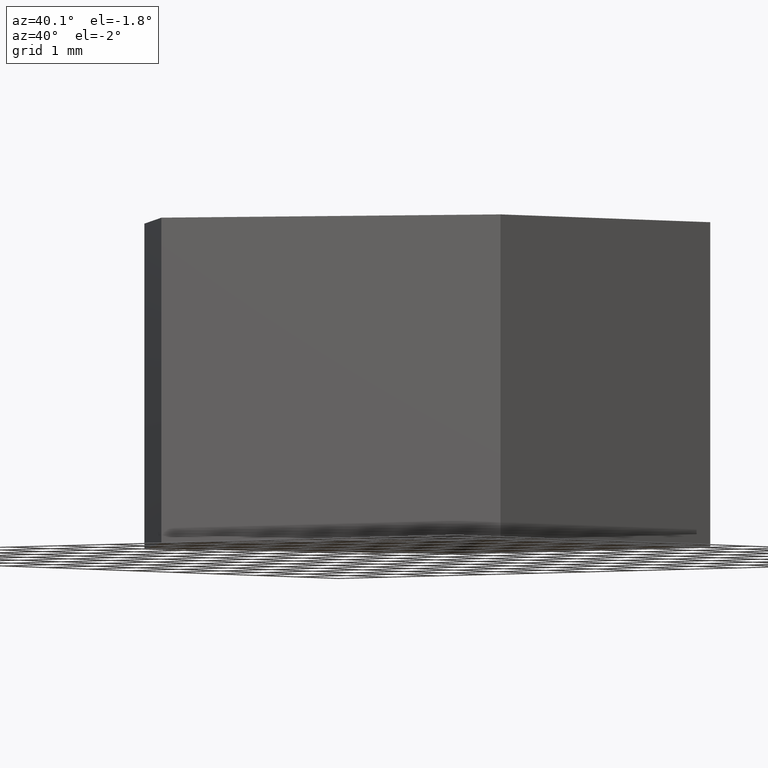
[diagram: clean part render]
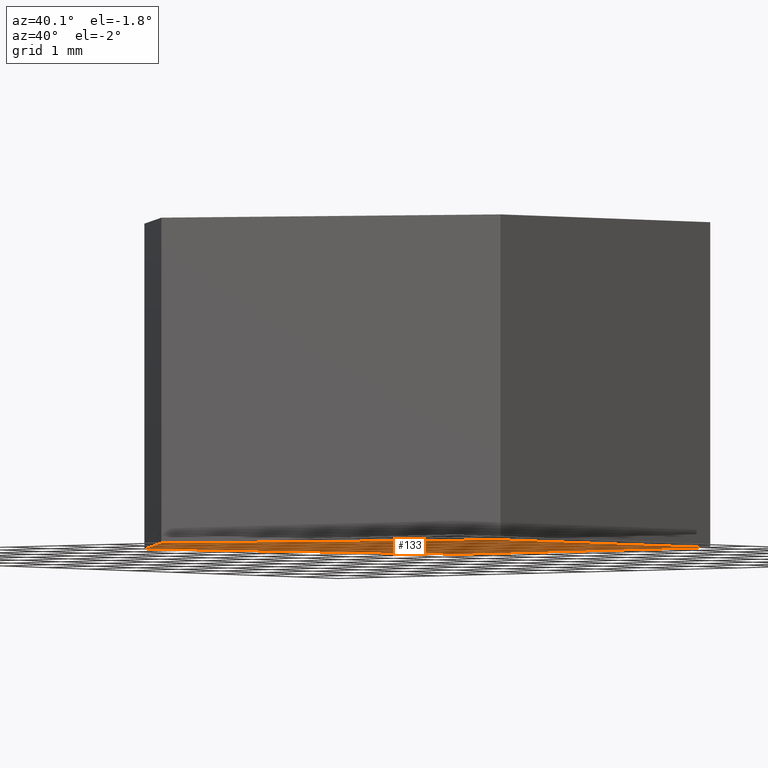
[diagram: same view with one face highlighted and labeled with its STEP entity id]
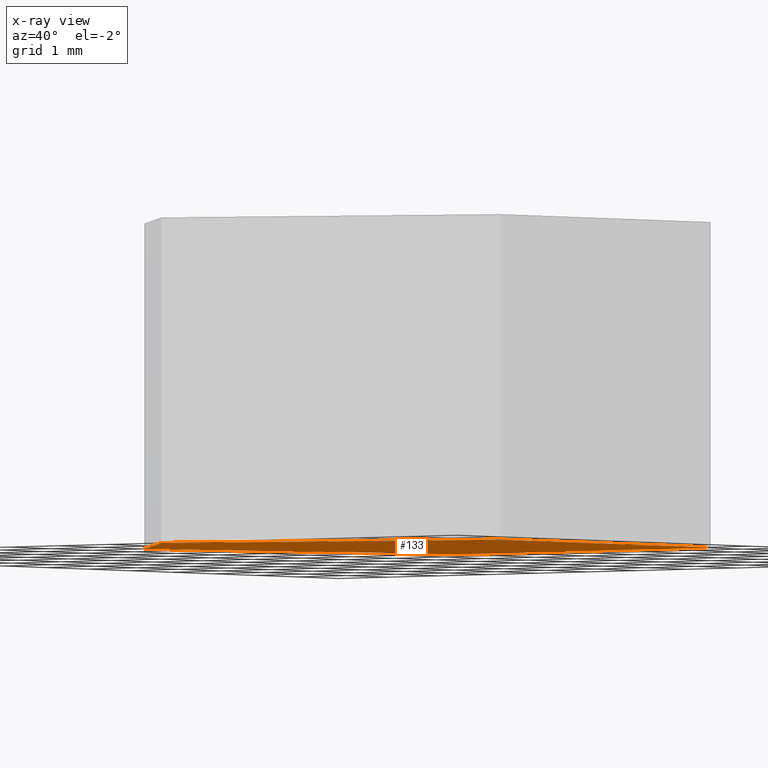
[diagram: x-ray of the same camera — body ghosted, the highlighted face saturated]
A machine part, auxiliary view. The second image highlights one B-rep face of the part: STEP entity #133.
The next image is the same camera in x-ray: the body ghosted, the highlighted face saturated — about 0% of this face is hidden behind the body in this view.
In plain terms, the highlighted planar face has unit normal (0, -0, 1).
Its self-contained STEP definition (entity closure, byte-faithful):
#9 = EDGE_CURVE ( 'NONE', #216, #322, #197, .T. ) ;
#16 = CARTESIAN_POINT ( 'NONE',  ( 11.62476252515132200, 16.24712349419276000, 0.0000000000000000000 ) ) ;
#21 = CARTESIAN_POINT ( 'NONE',  ( 16.62476252515132200, 16.24712349419276000, 0.0000000000000000000 ) ) ;
#41 = VECTOR ( 'NONE', #78, 999.9999999999998900 ) ;
#65 = ORIENTED_EDGE ( 'NONE', *, *, #314, .F. ) ;
#71 = CARTESIAN_POINT ( 'NONE',  ( 0.0000000000000000000, 0.0000000000000000000, 0.0000000000000000000 ) ) ;
#72 = DIRECTION ( 'NONE',  ( 0.0000000000000000000, -0.0000000000000000000, 1.000000000000000000 ) ) ;
#77 = CARTESIAN_POINT ( 'NONE',  ( 16.62476252515132200, 16.24712349419276000, 0.0000000000000000000 ) ) ;
#78 = DIRECTION ( 'NONE',  ( 0.7096581851591069500, -0.7045461377629449500, -0.0000000000000000000 ) ) ;
#80 = LINE ( 'NONE', #306, #41 ) ;
#87 = AXIS2_PLACEMENT_3D ( 'NONE', #71, #72, #313 ) ;
#103 = VERTEX_POINT ( 'NONE', #21 ) ;
#108 = CARTESIAN_POINT ( 'NONE',  ( 16.62476252515132200, 11.24712349419276000, 0.0000000000000000000 ) ) ;
#110 = DIRECTION ( 'NONE',  ( -0.3826834323650836800, -0.9238795325112891800, 0.0000000000000000000 ) ) ;
#112 = LINE ( 'NONE', #77, #325 ) ;
#119 = VERTEX_POINT ( 'NONE', #125 ) ;
#125 = CARTESIAN_POINT ( 'NONE',  ( 9.527288383901918700, 11.18337297566149500, 0.0000000000000000000 ) ) ;
#133 = ADVANCED_FACE ( 'NONE', ( #269 ), #284, .F. ) ;
#148 = VECTOR ( 'NONE', #342, 1000.000000000000000 ) ;
#153 = ORIENTED_EDGE ( 'NONE', *, *, #337, .F. ) ;
#156 = VERTEX_POINT ( 'NONE', #16 ) ;
#164 = CARTESIAN_POINT ( 'NONE',  ( 16.62476252515132200, 11.24712349419276000, 0.0000000000000000000 ) ) ;
#167 = EDGE_CURVE ( 'NONE', #119, #216, #80, .T. ) ;
#175 = ORIENTED_EDGE ( 'NONE', *, *, #191, .F. ) ;
#178 = VECTOR ( 'NONE', #110, 1000.000000000000200 ) ;
#187 = VECTOR ( 'NONE', #209, 1000.000000000000100 ) ;
#191 = EDGE_CURVE ( 'NONE', #103, #156, #112, .T. ) ;
#197 = LINE ( 'NONE', #260, #187 ) ;
#209 = DIRECTION ( 'NONE',  ( 0.9205048534524398200, 0.3907311284892748800, 0.0000000000000000000 ) ) ;
#211 = CARTESIAN_POINT ( 'NONE',  ( 11.62476252515132200, 16.24712349419276000, 0.0000000000000000000 ) ) ;
#216 = VERTEX_POINT ( 'NONE', #218 ) ;
#218 = CARTESIAN_POINT ( 'NONE',  ( 11.60801107383556300, 9.117638843926226100, 0.0000000000000000000 ) ) ;
#230 = ORIENTED_EDGE ( 'NONE', *, *, #9, .F. ) ;
#258 = ORIENTED_EDGE ( 'NONE', *, *, #167, .F. ) ;
#260 = CARTESIAN_POINT ( 'NONE',  ( 11.60801107383556300, 9.117638843926226100, 0.0000000000000000000 ) ) ;
#266 = DIRECTION ( 'NONE',  ( -1.000000000000000000, 0.0000000000000000000, 0.0000000000000000000 ) ) ;
#269 = FACE_OUTER_BOUND ( 'NONE', #303, .T. ) ;
#284 = PLANE ( 'NONE',  #87 ) ;
#303 = EDGE_LOOP ( 'NONE', ( #230, #258, #65, #175, #153 ) ) ;
#304 = LINE ( 'NONE', #164, #148 ) ;
#306 = CARTESIAN_POINT ( 'NONE',  ( 11.60801107383556300, 9.117638843926226100, 0.0000000000000000000 ) ) ;
#313 = DIRECTION ( 'NONE',  ( 1.000000000000000000, 0.0000000000000000000, -0.0000000000000000000 ) ) ;
#314 = EDGE_CURVE ( 'NONE', #156, #119, #321, .T. ) ;
#321 = LINE ( 'NONE', #211, #178 ) ;
#322 = VERTEX_POINT ( 'NONE', #108 ) ;
#325 = VECTOR ( 'NONE', #266, 1000.000000000000000 ) ;
#337 = EDGE_CURVE ( 'NONE', #322, #103, #304, .T. ) ;
#342 = DIRECTION ( 'NONE',  ( 0.0000000000000000000, 1.000000000000000000, 0.0000000000000000000 ) ) ;